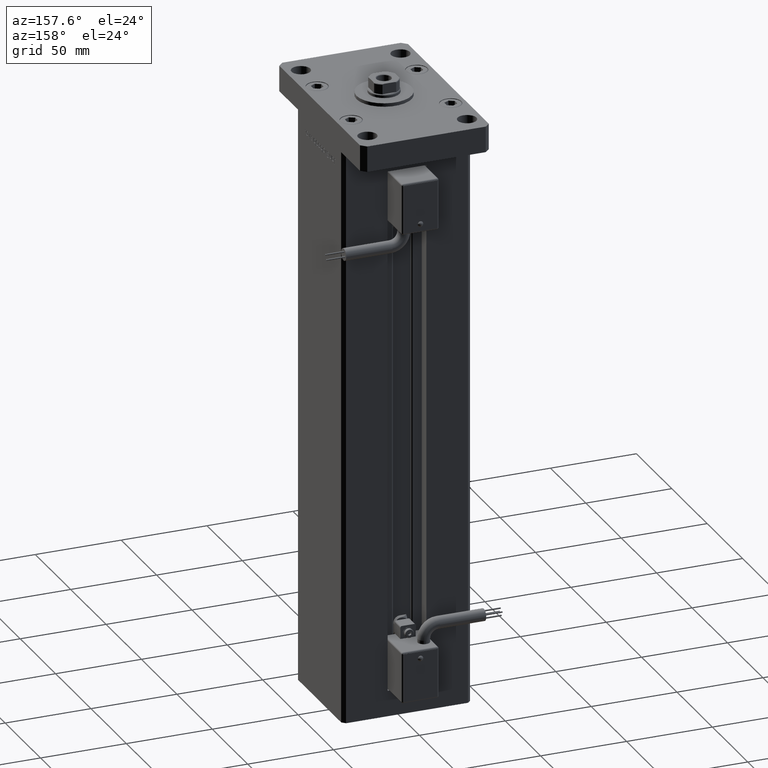
[diagram: clean part render]
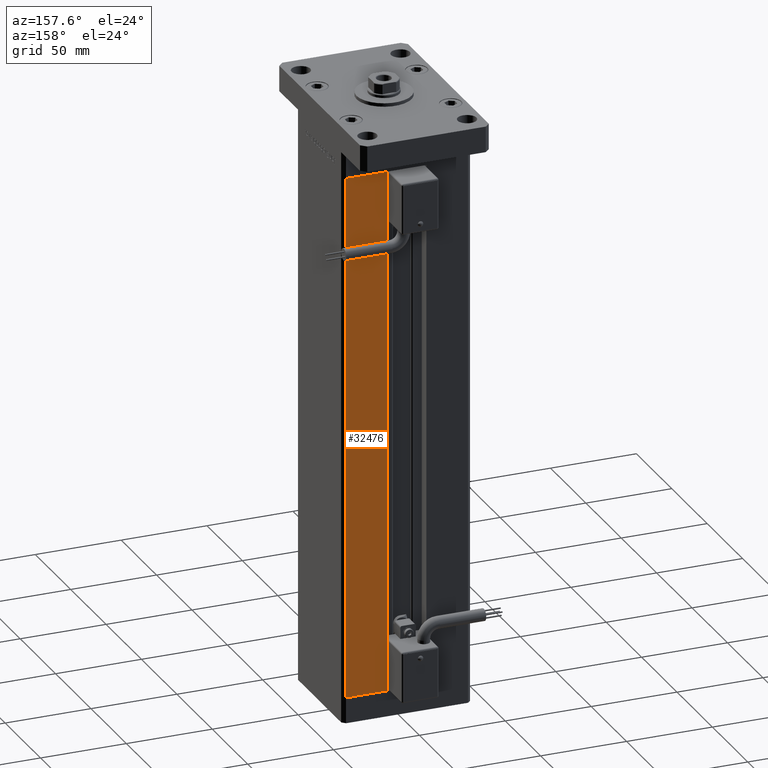
[diagram: same view with one face highlighted and labeled with its STEP entity id]
A machine part, auxiliary view. The second image highlights one B-rep face of the part: STEP entity #32476.
In plain terms, the highlighted planar face has unit normal (0, -1, 0).
Its self-contained STEP definition (entity closure, byte-faithful):
#1979 = CARTESIAN_POINT ( 'NONE',  ( 11.25000000000000178, 32.49999999999999289, 0.000000000000000000 ) ) ;
#2511 = CARTESIAN_POINT ( 'NONE',  ( 11.25000000000000178, 32.49999999999999289, 0.000000000000000000 ) ) ;
#2537 = DIRECTION ( 'NONE',  ( -0.000000000000000000, -0.000000000000000000, 1.000000000000000000 ) ) ;
#3604 = CARTESIAN_POINT ( 'NONE',  ( 35.50000000000000000, 32.49999999999999289, 0.000000000000000000 ) ) ;
#4266 = DIRECTION ( 'NONE',  ( -1.000000000000000000, 0.000000000000000000, 0.000000000000000000 ) ) ;
#4282 = PLANE ( 'NONE',  #37978 ) ;
#5422 = VERTEX_POINT ( 'NONE', #2511 ) ;
#9295 = VECTOR ( 'NONE', #2537, 1000.000000000000000 ) ;
#15041 = VERTEX_POINT ( 'NONE', #3604 ) ;
#17162 = LINE ( 'NONE', #21450, #28675 ) ;
#18317 = DIRECTION ( 'NONE',  ( 0.000000000000000000, -0.000000000000000000, -1.000000000000000000 ) ) ;
#18579 = EDGE_CURVE ( 'NONE', #5422, #36285, #54923, .T. ) ;
#18594 = DIRECTION ( 'NONE',  ( 0.000000000000000000, -1.000000000000000000, 0.000000000000000000 ) ) ;
#18651 = EDGE_LOOP ( 'NONE', ( #34990, #22318, #39081, #28943 ) ) ;
#21328 = VERTEX_POINT ( 'NONE', #23062 ) ;
#21450 = CARTESIAN_POINT ( 'NONE',  ( -11.25000000000000178, 32.49999999999999289, 0.000000000000000000 ) ) ;
#22318 = ORIENTED_EDGE ( 'NONE', *, *, #18579, .T. ) ;
#22408 = EDGE_CURVE ( 'NONE', #36285, #21328, #54235, .T. ) ;
#22983 = CARTESIAN_POINT ( 'NONE',  ( 11.24999999999999467, 32.49999999999999289, 306.0000000000000000 ) ) ;
#23062 = CARTESIAN_POINT ( 'NONE',  ( 35.50000000000000000, 32.49999999999999289, 306.0000000000000000 ) ) ;
#28675 = VECTOR ( 'NONE', #4266, 1000.000000000000000 ) ;
#28943 = ORIENTED_EDGE ( 'NONE', *, *, #54957, .T. ) ;
#32476 = ADVANCED_FACE ( 'NONE', ( #39784 ), #4282, .F. ) ;
#34990 = ORIENTED_EDGE ( 'NONE', *, *, #49663, .T. ) ;
#36285 = VERTEX_POINT ( 'NONE', #22983 ) ;
#37978 = AXIS2_PLACEMENT_3D ( 'NONE', #44350, #18594, #18317 ) ;
#39081 = ORIENTED_EDGE ( 'NONE', *, *, #22408, .T. ) ;
#39709 = VECTOR ( 'NONE', #45656, 1000.000000000000000 ) ;
#39741 = CARTESIAN_POINT ( 'NONE',  ( 35.50000000000000000, 32.49999999999999289, 306.0000000000000000 ) ) ;
#39784 = FACE_OUTER_BOUND ( 'NONE', #18651, .T. ) ;
#44017 = LINE ( 'NONE', #39741, #39709 ) ;
#44350 = CARTESIAN_POINT ( 'NONE',  ( -11.25000000000000178, 32.49999999999999289, 306.0000000000000000 ) ) ;
#45364 = DIRECTION ( 'NONE',  ( 1.000000000000000000, 0.000000000000000000, 0.000000000000000000 ) ) ;
#45639 = CARTESIAN_POINT ( 'NONE',  ( -11.25000000000000178, 32.49999999999999289, 306.0000000000000000 ) ) ;
#45656 = DIRECTION ( 'NONE',  ( -0.000000000000000000, -0.000000000000000000, -1.000000000000000000 ) ) ;
#46790 = VECTOR ( 'NONE', #45364, 1000.000000000000000 ) ;
#49663 = EDGE_CURVE ( 'NONE', #15041, #5422, #17162, .T. ) ;
#54235 = LINE ( 'NONE', #45639, #46790 ) ;
#54923 = LINE ( 'NONE', #1979, #9295 ) ;
#54957 = EDGE_CURVE ( 'NONE', #21328, #15041, #44017, .T. ) ;